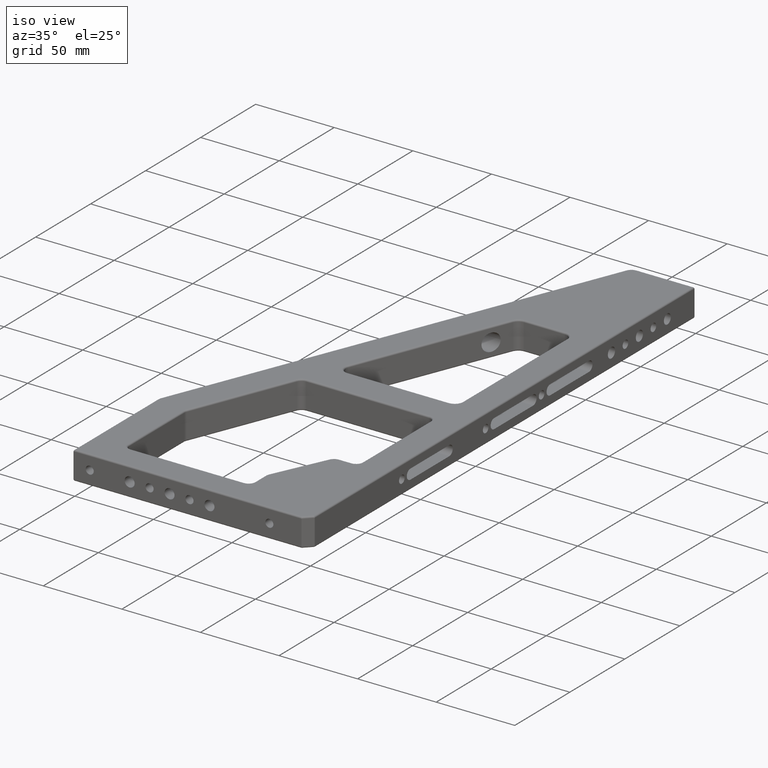
[diagram: clean part render]
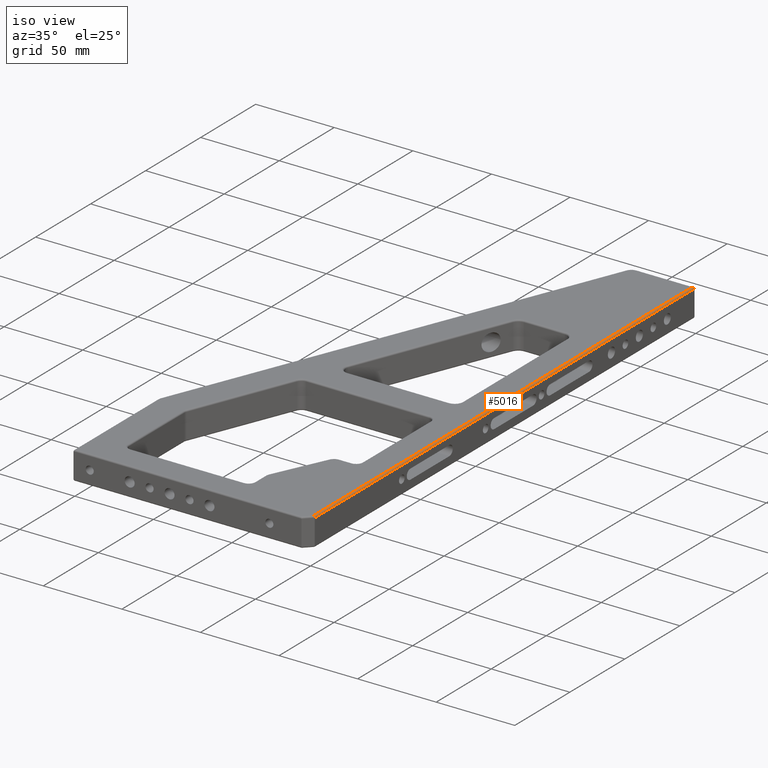
[diagram: same view with one face highlighted and labeled with its STEP entity id]
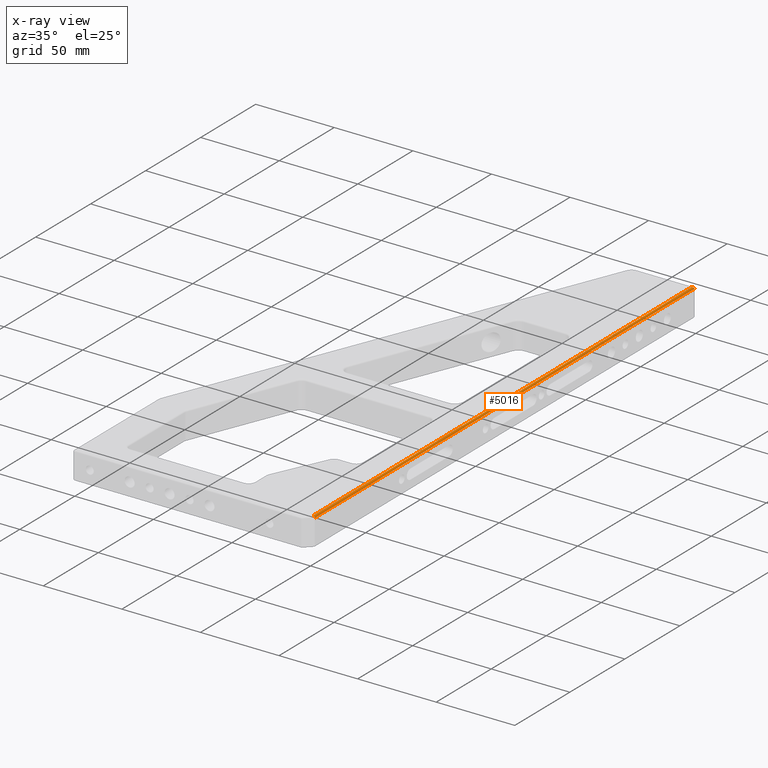
[diagram: x-ray of the same camera — body ghosted, the highlighted face saturated]
A machine part, iso view. The second image highlights one B-rep face of the part: STEP entity #5016.
The next image is the same camera in x-ray: the body ghosted, the highlighted face saturated — about 0% of this face is hidden behind the body in this view.
In plain terms, the highlighted cylindrical surface (edge-blend (fillet) strip) has radius 1 mm, axis along (0, -1, 0).
Its self-contained STEP definition (entity closure, byte-faithful):
#43 = CARTESIAN_POINT ( 'NONE',  ( 149.0000000000000000, 349.0000000000000000, 18.00000000000001400 ) ) ;
#268 = DIRECTION ( 'NONE',  ( -0.0000000000000000000, -1.000000000000000000, -0.0000000000000000000 ) ) ;
#725 = ORIENTED_EDGE ( 'NONE', *, *, #3391, .F. ) ;
#804 = CARTESIAN_POINT ( 'NONE',  ( 149.5857864376268900, 349.5857864376269500, 18.00000000000001400 ) ) ;
#820 = CARTESIAN_POINT ( 'NONE',  ( 150.0000000000000000, 350.0000000000000000, 17.00000000000001400 ) ) ;
#827 = CARTESIAN_POINT ( 'NONE',  ( 149.0000000000000000, 350.0000000000000000, 18.00000000000001400 ) ) ;
#830 = DIRECTION ( 'NONE',  ( 0.0000000000000000000, -1.000000000000000000, 0.0000000000000000000 ) ) ;
#954 = CARTESIAN_POINT ( 'NONE',  ( 150.0000000000000000, 4.999999999999996400, 17.58578643762691800 ) ) ;
#1367 = VERTEX_POINT ( 'NONE', #43 ) ;
#1553 = CARTESIAN_POINT ( 'NONE',  ( 150.0000000000000000, 5.000000000000004400, 17.00000000000001400 ) ) ;
#1598 = LINE ( 'NONE', #827, #3891 ) ;
#1682 = DIRECTION ( 'NONE',  ( 0.0000000000000000000, 1.000000000000000000, -0.0000000000000000000 ) ) ;
#1702 = DIRECTION ( 'NONE',  ( 0.0000000000000000000, 0.0000000000000000000, -1.000000000000000000 ) ) ;
#1736 = EDGE_CURVE ( 'NONE', #1829, #5297, #4146, .T. ) ;
#1829 = VERTEX_POINT ( 'NONE', #3607 ) ;
#2180 = ORIENTED_EDGE ( 'NONE', *, *, #1736, .F. ) ;
#2245 = CARTESIAN_POINT ( 'NONE',  ( 149.5857864376268900, 5.171572875253808400, 18.00000000000001400 ) ) ;
#2273 = VERTEX_POINT ( 'NONE', #4088 ) ;
#2790 =( BOUNDED_CURVE ( )  B_SPLINE_CURVE ( 3, ( #4704, #804, #3404, #820 ),
 .UNSPECIFIED., .F., .F. ) 
 B_SPLINE_CURVE_WITH_KNOTS ( ( 4, 4 ),
 ( 1.570796326794896600, 3.141592653589793100 ),
 .UNSPECIFIED. ) 
 CURVE ( )  GEOMETRIC_REPRESENTATION_ITEM ( )  RATIONAL_B_SPLINE_CURVE ( ( 1.000000000000000000, 0.8047378541243649400, 0.8047378541243649400, 1.000000000000000000 ) ) 
 REPRESENTATION_ITEM ( '' )  );
#2840 = ORIENTED_EDGE ( 'NONE', *, *, #3760, .F. ) ;
#2843 = CYLINDRICAL_SURFACE ( 'NONE', #3689, 1.000000000000000900 ) ;
#2973 = ORIENTED_EDGE ( 'NONE', *, *, #4473, .T. ) ;
#2988 = VECTOR ( 'NONE', #268, 1000.000000000000000 ) ;
#3106 = CARTESIAN_POINT ( 'NONE',  ( 149.0000000000000000, 5.414213562373094000, 18.00000000000001400 ) ) ;
#3111 = FACE_OUTER_BOUND ( 'NONE', #4775, .T. ) ;
#3391 = EDGE_CURVE ( 'NONE', #1367, #1829, #2790, .T. ) ;
#3404 = CARTESIAN_POINT ( 'NONE',  ( 150.0000000000000000, 350.0000000000000000, 17.58578643762691800 ) ) ;
#3607 = CARTESIAN_POINT ( 'NONE',  ( 150.0000000000000000, 350.0000000000000000, 17.00000000000001400 ) ) ;
#3689 = AXIS2_PLACEMENT_3D ( 'NONE', #3854, #830, #1702 ) ;
#3760 = EDGE_CURVE ( 'NONE', #2273, #1367, #1598, .T. ) ;
#3838 =( BOUNDED_CURVE ( )  B_SPLINE_CURVE ( 3, ( #3106, #2245, #954, #3992 ),
 .UNSPECIFIED., .F., .F. ) 
 B_SPLINE_CURVE_WITH_KNOTS ( ( 4, 4 ),
 ( 1.570796326794896600, 3.141592653589793100 ),
 .UNSPECIFIED. ) 
 CURVE ( )  GEOMETRIC_REPRESENTATION_ITEM ( )  RATIONAL_B_SPLINE_CURVE ( ( 1.000000000000000000, 0.8047378541243649400, 0.8047378541243649400, 1.000000000000000000 ) ) 
 REPRESENTATION_ITEM ( '' )  );
#3854 = CARTESIAN_POINT ( 'NONE',  ( 149.0000000000000000, 0.0000000000000000000, 17.00000000000001400 ) ) ;
#3891 = VECTOR ( 'NONE', #1682, 1000.000000000000000 ) ;
#3992 = CARTESIAN_POINT ( 'NONE',  ( 150.0000000000000000, 5.000000000000004400, 17.00000000000001400 ) ) ;
#4088 = CARTESIAN_POINT ( 'NONE',  ( 149.0000000000000000, 5.414213562373094000, 18.00000000000001400 ) ) ;
#4146 = LINE ( 'NONE', #1553, #2988 ) ;
#4473 = EDGE_CURVE ( 'NONE', #2273, #5297, #3838, .T. ) ;
#4704 = CARTESIAN_POINT ( 'NONE',  ( 149.0000000000000000, 349.0000000000000000, 18.00000000000001400 ) ) ;
#4775 = EDGE_LOOP ( 'NONE', ( #2973, #2180, #725, #2840 ) ) ;
#5005 = CARTESIAN_POINT ( 'NONE',  ( 150.0000000000000000, 5.000000000000004400, 17.00000000000001400 ) ) ;
#5016 = ADVANCED_FACE ( 'NONE', ( #3111 ), #2843, .T. ) ;
#5297 = VERTEX_POINT ( 'NONE', #5005 ) ;